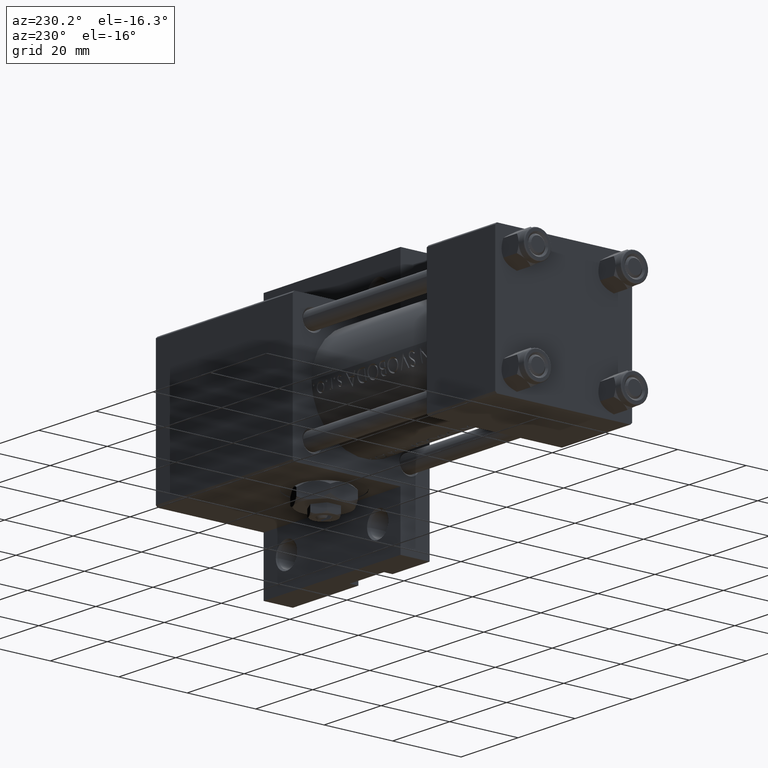
[diagram: clean part render]
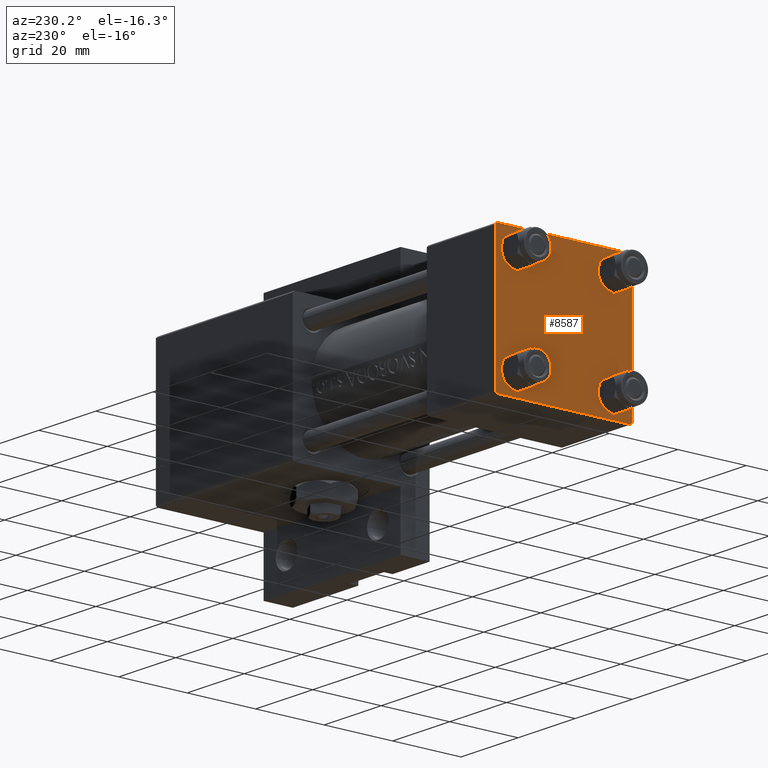
[diagram: same view with one face highlighted and labeled with its STEP entity id]
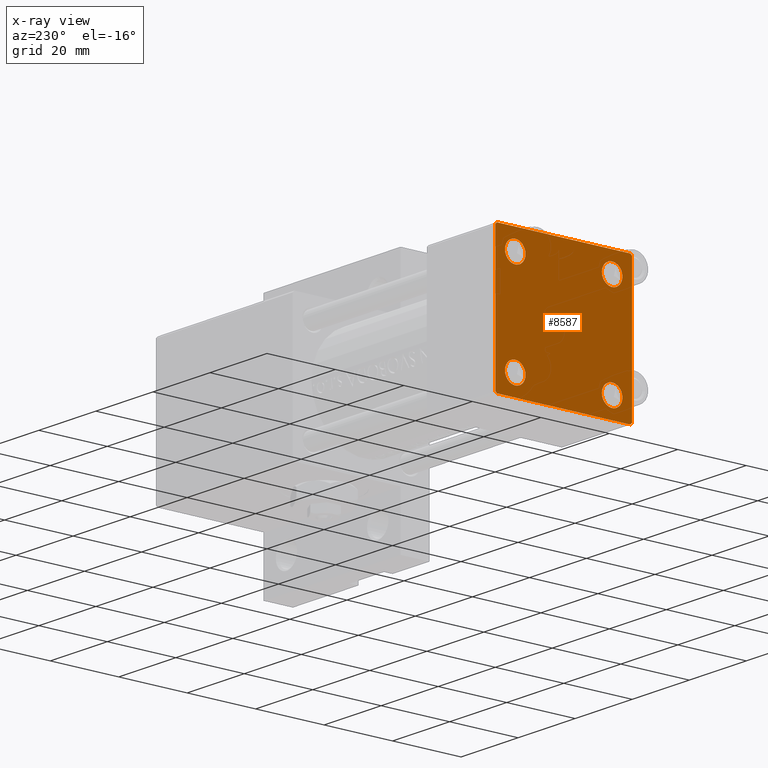
[diagram: x-ray of the same camera — body ghosted, the highlighted face saturated]
A machine part, auxiliary view. The second image highlights one B-rep face of the part: STEP entity #8587.
The next image is the same camera in x-ray: the body ghosted, the highlighted face saturated — about 0% of this face is hidden behind the body in this view.
In plain terms, the highlighted planar face has unit normal (-1, 0, -0).
Its self-contained STEP definition (entity closure, byte-faithful):
#93 = DIRECTION ( 'NONE',  ( 0.000000000000000000, 0.000000000000000000, 1.000000000000000000 ) ) ;
#180 = FACE_BOUND ( 'NONE', #40793, .T. ) ;
#1146 = CARTESIAN_POINT ( 'NONE',  ( 0.000000000000000000, 0.000000000000000000, 0.000000000000000000 ) ) ;
#1158 = CARTESIAN_POINT ( 'NONE',  ( 0.000000000000000000, 20.00000000000000000, -19.50000000000002132 ) ) ;
#1463 = VERTEX_POINT ( 'NONE', #16622 ) ;
#1566 = LINE ( 'NONE', #39234, #17185 ) ;
#1644 = CIRCLE ( 'NONE', #5632, 2.999999999999983569 ) ;
#1728 = EDGE_LOOP ( 'NONE', ( #29189, #20226 ) ) ;
#1836 = CARTESIAN_POINT ( 'NONE',  ( 0.000000000000000000, -19.49999999999999289, 19.99999999999998934 ) ) ;
#2260 = EDGE_CURVE ( 'NONE', #19618, #48536, #47639, .T. ) ;
#2349 = CARTESIAN_POINT ( 'NONE',  ( 0.000000000000000000, 20.00000000000000000, -20.00000000000000711 ) ) ;
#2526 = CIRCLE ( 'NONE', #21641, 3.000000000000004441 ) ;
#2536 = AXIS2_PLACEMENT_3D ( 'NONE', #42244, #31498, #93 ) ;
#2572 = CIRCLE ( 'NONE', #2536, 2.999999999999983569 ) ;
#2619 = CARTESIAN_POINT ( 'NONE',  ( 0.000000000000000000, -19.50000000000000711, -20.00000000000000000 ) ) ;
#2851 = DIRECTION ( 'NONE',  ( 0.000000000000000000, -1.000000000000000000, 1.734723475976807094E-16 ) ) ;
#2928 = EDGE_CURVE ( 'NONE', #13651, #46464, #33337, .T. ) ;
#3226 = EDGE_LOOP ( 'NONE', ( #48914, #45903, #28701, #46310, #16473, #34949, #37921, #20178 ) ) ;
#3936 = DIRECTION ( 'NONE',  ( 0.000000000000000000, 8.673617379884036705E-17, -1.000000000000000000 ) ) ;
#4941 = AXIS2_PLACEMENT_3D ( 'NONE', #47527, #8630, #43041 ) ;
#5066 = DIRECTION ( 'NONE',  ( 0.000000000000000000, 0.000000000000000000, -1.000000000000000000 ) ) ;
#5151 = CARTESIAN_POINT ( 'NONE',  ( 0.000000000000000000, 14.14999999999999858, 14.15000000000000036 ) ) ;
#5536 = CARTESIAN_POINT ( 'NONE',  ( 0.000000000000000000, -14.14999999999999503, -17.15000000000000924 ) ) ;
#5632 = AXIS2_PLACEMENT_3D ( 'NONE', #5151, #39077, #9142 ) ;
#5633 = DIRECTION ( 'NONE',  ( -0.000000000000000000, 0.000000000000000000, 1.000000000000000000 ) ) ;
#5774 = AXIS2_PLACEMENT_3D ( 'NONE', #38056, #25865, #19092 ) ;
#6269 = CARTESIAN_POINT ( 'NONE',  ( 0.000000000000000000, -14.14999999999999503, 17.14999999999998792 ) ) ;
#6294 = DIRECTION ( 'NONE',  ( 1.000000000000000000, 0.000000000000000000, 0.000000000000000000 ) ) ;
#8405 = VERTEX_POINT ( 'NONE', #16648 ) ;
#8461 = CIRCLE ( 'NONE', #36333, 2.999999999999983569 ) ;
#8587 = ADVANCED_FACE ( 'NONE', ( #49336, #34357, #180, #35565, #16591 ), #24838, .T. ) ;
#8630 = DIRECTION ( 'NONE',  ( 1.000000000000000000, 0.000000000000000000, 0.000000000000000000 ) ) ;
#9142 = DIRECTION ( 'NONE',  ( 0.000000000000000000, 0.000000000000000000, 1.000000000000000000 ) ) ;
#11417 = DIRECTION ( 'NONE',  ( -0.000000000000000000, -0.7071067811865524577, -0.7071067811865426878 ) ) ;
#11891 = CARTESIAN_POINT ( 'NONE',  ( 0.000000000000000000, -20.00000000000000355, 19.99999999999998934 ) ) ;
#12539 = CARTESIAN_POINT ( 'NONE',  ( 0.000000000000000000, 14.14999999999999858, 11.15000000000001990 ) ) ;
#12912 = AXIS2_PLACEMENT_3D ( 'NONE', #32894, #13917, #17905 ) ;
#13193 = EDGE_CURVE ( 'NONE', #48148, #22567, #1644, .T. ) ;
#13651 = VERTEX_POINT ( 'NONE', #22292 ) ;
#13917 = DIRECTION ( 'NONE',  ( 1.000000000000000000, 0.000000000000000000, 0.000000000000000000 ) ) ;
#14457 = VECTOR ( 'NONE', #38124, 1000.000000000000000 ) ;
#14961 = EDGE_CURVE ( 'NONE', #13651, #31926, #27621, .T. ) ;
#15421 = EDGE_CURVE ( 'NONE', #41970, #37706, #21553, .T. ) ;
#15558 = VERTEX_POINT ( 'NONE', #27512 ) ;
#15637 = CARTESIAN_POINT ( 'NONE',  ( -0.000000000000000000, 19.74999999999986855, -19.75000000000014211 ) ) ;
#15889 = CARTESIAN_POINT ( 'NONE',  ( 0.000000000000000000, 20.00000000000000000, 20.00000000000000000 ) ) ;
#16473 = ORIENTED_EDGE ( 'NONE', *, *, #31486, .F. ) ;
#16591 = FACE_OUTER_BOUND ( 'NONE', #3226, .T. ) ;
#16622 = CARTESIAN_POINT ( 'NONE',  ( 0.000000000000000000, -14.14999999999999503, -11.15000000000000036 ) ) ;
#16648 = CARTESIAN_POINT ( 'NONE',  ( 0.000000000000000000, -20.00000000000000000, -19.49999999999999645 ) ) ;
#16788 = ORIENTED_EDGE ( 'NONE', *, *, #20070, .T. ) ;
#17037 = DIRECTION ( 'NONE',  ( 0.000000000000000000, -0.7071067811865401342, 0.7071067811865549002 ) ) ;
#17185 = VECTOR ( 'NONE', #5066, 1000.000000000000000 ) ;
#17905 = DIRECTION ( 'NONE',  ( 0.000000000000000000, 0.000000000000000000, 1.000000000000000000 ) ) ;
#18271 = CARTESIAN_POINT ( 'NONE',  ( 0.000000000000000000, -20.00000000000000355, 19.49999999999998224 ) ) ;
#19092 = DIRECTION ( 'NONE',  ( 0.000000000000000000, 0.000000000000000000, 1.000000000000000000 ) ) ;
#19618 = VERTEX_POINT ( 'NONE', #6269 ) ;
#19649 = ORIENTED_EDGE ( 'NONE', *, *, #28002, .T. ) ;
#20070 = EDGE_CURVE ( 'NONE', #15558, #43306, #44024, .T. ) ;
#20178 = ORIENTED_EDGE ( 'NONE', *, *, #2928, .T. ) ;
#20226 = ORIENTED_EDGE ( 'NONE', *, *, #13193, .T. ) ;
#20358 = EDGE_CURVE ( 'NONE', #1463, #38628, #28849, .T. ) ;
#21005 = DIRECTION ( 'NONE',  ( 0.000000000000000000, 0.000000000000000000, 1.000000000000000000 ) ) ;
#21323 = ORIENTED_EDGE ( 'NONE', *, *, #40425, .T. ) ;
#21553 = LINE ( 'NONE', #2349, #39138 ) ;
#21641 = AXIS2_PLACEMENT_3D ( 'NONE', #25511, #6294, #21005 ) ;
#21826 = VECTOR ( 'NONE', #29664, 1000.000000000000114 ) ;
#22292 = CARTESIAN_POINT ( 'NONE',  ( 0.000000000000000000, 19.50000000000000000, 20.00000000000000000 ) ) ;
#22567 = VERTEX_POINT ( 'NONE', #25358 ) ;
#22678 = CARTESIAN_POINT ( 'NONE',  ( -0.000000000000000000, -19.74999999999992539, 19.75000000000006395 ) ) ;
#22937 = VECTOR ( 'NONE', #48554, 999.9999999999998863 ) ;
#23224 = CARTESIAN_POINT ( 'NONE',  ( 0.000000000000000000, 14.14999999999999858, 14.15000000000000036 ) ) ;
#24838 = PLANE ( 'NONE',  #38937 ) ;
#24975 = CARTESIAN_POINT ( 'NONE',  ( 0.000000000000000000, 14.14999999999999858, -17.14999999999998437 ) ) ;
#25050 = CARTESIAN_POINT ( 'NONE',  ( 0.000000000000000000, -19.75000000000020961, -19.74999999999979394 ) ) ;
#25293 = CARTESIAN_POINT ( 'NONE',  ( 0.000000000000000000, -14.14999999999999503, 14.15000000000000391 ) ) ;
#25358 = CARTESIAN_POINT ( 'NONE',  ( 0.000000000000000000, 14.14999999999999858, 17.14999999999998437 ) ) ;
#25511 = CARTESIAN_POINT ( 'NONE',  ( 0.000000000000000000, -14.14999999999999503, -14.15000000000000391 ) ) ;
#25865 = DIRECTION ( 'NONE',  ( 1.000000000000000000, 0.000000000000000000, 0.000000000000000000 ) ) ;
#27127 = EDGE_CURVE ( 'NONE', #22567, #48148, #8461, .T. ) ;
#27512 = CARTESIAN_POINT ( 'NONE',  ( 0.000000000000000000, 14.14999999999999858, -11.15000000000001812 ) ) ;
#27621 = LINE ( 'NONE', #15889, #14457 ) ;
#27686 = AXIS2_PLACEMENT_3D ( 'NONE', #25293, #37001, #44246 ) ;
#27760 = ORIENTED_EDGE ( 'NONE', *, *, #2260, .T. ) ;
#28002 = EDGE_CURVE ( 'NONE', #43306, #15558, #2572, .T. ) ;
#28130 = VECTOR ( 'NONE', #11417, 1000.000000000000000 ) ;
#28701 = ORIENTED_EDGE ( 'NONE', *, *, #15421, .T. ) ;
#28849 = CIRCLE ( 'NONE', #5774, 3.000000000000004441 ) ;
#29189 = ORIENTED_EDGE ( 'NONE', *, *, #27127, .T. ) ;
#29664 = DIRECTION ( 'NONE',  ( -0.000000000000000000, 0.7071067811865500152, 0.7071067811865451302 ) ) ;
#31486 = EDGE_CURVE ( 'NONE', #32035, #8405, #35328, .T. ) ;
#31498 = DIRECTION ( 'NONE',  ( 1.000000000000000000, 0.000000000000000000, 0.000000000000000000 ) ) ;
#31926 = VERTEX_POINT ( 'NONE', #1836 ) ;
#32035 = VERTEX_POINT ( 'NONE', #18271 ) ;
#32894 = CARTESIAN_POINT ( 'NONE',  ( 0.000000000000000000, 14.14999999999999858, -14.15000000000000036 ) ) ;
#33337 = LINE ( 'NONE', #37565, #22937 ) ;
#33354 = EDGE_CURVE ( 'NONE', #37706, #8405, #44252, .T. ) ;
#34357 = FACE_BOUND ( 'NONE', #46629, .T. ) ;
#34448 = DIRECTION ( 'NONE',  ( 0.000000000000000000, 0.000000000000000000, 1.000000000000000000 ) ) ;
#34949 = ORIENTED_EDGE ( 'NONE', *, *, #45455, .T. ) ;
#35328 = LINE ( 'NONE', #11891, #48085 ) ;
#35565 = FACE_BOUND ( 'NONE', #1728, .T. ) ;
#35729 = EDGE_CURVE ( 'NONE', #46464, #43674, #1566, .T. ) ;
#36333 = AXIS2_PLACEMENT_3D ( 'NONE', #23224, #41213, #34448 ) ;
#37001 = DIRECTION ( 'NONE',  ( 1.000000000000000000, 0.000000000000000000, 0.000000000000000000 ) ) ;
#37388 = LINE ( 'NONE', #22678, #21826 ) ;
#37565 = CARTESIAN_POINT ( 'NONE',  ( -0.000000000000000000, 19.75000000000013500, 19.74999999999986144 ) ) ;
#37581 = VECTOR ( 'NONE', #17037, 1000.000000000000000 ) ;
#37706 = VERTEX_POINT ( 'NONE', #2619 ) ;
#37861 = LINE ( 'NONE', #15637, #28130 ) ;
#37921 = ORIENTED_EDGE ( 'NONE', *, *, #14961, .F. ) ;
#38056 = CARTESIAN_POINT ( 'NONE',  ( 0.000000000000000000, -14.14999999999999503, -14.15000000000000391 ) ) ;
#38124 = DIRECTION ( 'NONE',  ( 0.000000000000000000, -1.000000000000000000, -2.602085213965210149E-16 ) ) ;
#38628 = VERTEX_POINT ( 'NONE', #5536 ) ;
#38937 = AXIS2_PLACEMENT_3D ( 'NONE', #1146, #47046, #5633 ) ;
#39077 = DIRECTION ( 'NONE',  ( 1.000000000000000000, 0.000000000000000000, 0.000000000000000000 ) ) ;
#39138 = VECTOR ( 'NONE', #2851, 1000.000000000000000 ) ;
#39234 = CARTESIAN_POINT ( 'NONE',  ( 0.000000000000000000, 20.00000000000000000, 20.00000000000000000 ) ) ;
#39751 = ORIENTED_EDGE ( 'NONE', *, *, #20358, .T. ) ;
#39869 = EDGE_LOOP ( 'NONE', ( #27760, #49087 ) ) ;
#40425 = EDGE_CURVE ( 'NONE', #38628, #1463, #2526, .T. ) ;
#40582 = CARTESIAN_POINT ( 'NONE',  ( 0.000000000000000000, 20.00000000000000000, 19.49999999999999289 ) ) ;
#40793 = EDGE_LOOP ( 'NONE', ( #16788, #19649 ) ) ;
#41213 = DIRECTION ( 'NONE',  ( 1.000000000000000000, 0.000000000000000000, 0.000000000000000000 ) ) ;
#41387 = EDGE_CURVE ( 'NONE', #48536, #19618, #46395, .T. ) ;
#41970 = VERTEX_POINT ( 'NONE', #46000 ) ;
#42244 = CARTESIAN_POINT ( 'NONE',  ( 0.000000000000000000, 14.14999999999999858, -14.15000000000000036 ) ) ;
#42990 = EDGE_CURVE ( 'NONE', #43674, #41970, #37861, .T. ) ;
#43041 = DIRECTION ( 'NONE',  ( 0.000000000000000000, 0.000000000000000000, 1.000000000000000000 ) ) ;
#43306 = VERTEX_POINT ( 'NONE', #24975 ) ;
#43674 = VERTEX_POINT ( 'NONE', #1158 ) ;
#44024 = CIRCLE ( 'NONE', #12912, 2.999999999999983569 ) ;
#44246 = DIRECTION ( 'NONE',  ( 0.000000000000000000, 0.000000000000000000, 1.000000000000000000 ) ) ;
#44252 = LINE ( 'NONE', #25050, #37581 ) ;
#45455 = EDGE_CURVE ( 'NONE', #32035, #31926, #37388, .T. ) ;
#45813 = CARTESIAN_POINT ( 'NONE',  ( 0.000000000000000000, -14.14999999999999503, 11.15000000000002345 ) ) ;
#45903 = ORIENTED_EDGE ( 'NONE', *, *, #42990, .T. ) ;
#46000 = CARTESIAN_POINT ( 'NONE',  ( 0.000000000000000000, 19.50000000000000711, -20.00000000000000711 ) ) ;
#46310 = ORIENTED_EDGE ( 'NONE', *, *, #33354, .T. ) ;
#46395 = CIRCLE ( 'NONE', #4941, 2.999999999999983569 ) ;
#46464 = VERTEX_POINT ( 'NONE', #40582 ) ;
#46629 = EDGE_LOOP ( 'NONE', ( #39751, #21323 ) ) ;
#47046 = DIRECTION ( 'NONE',  ( -1.000000000000000000, 0.000000000000000000, -0.000000000000000000 ) ) ;
#47527 = CARTESIAN_POINT ( 'NONE',  ( 0.000000000000000000, -14.14999999999999503, 14.15000000000000391 ) ) ;
#47639 = CIRCLE ( 'NONE', #27686, 2.999999999999983569 ) ;
#48085 = VECTOR ( 'NONE', #3936, 1000.000000000000000 ) ;
#48148 = VERTEX_POINT ( 'NONE', #12539 ) ;
#48536 = VERTEX_POINT ( 'NONE', #45813 ) ;
#48554 = DIRECTION ( 'NONE',  ( 0.000000000000000000, 0.7071067811865425767, -0.7071067811865525687 ) ) ;
#48914 = ORIENTED_EDGE ( 'NONE', *, *, #35729, .T. ) ;
#49087 = ORIENTED_EDGE ( 'NONE', *, *, #41387, .T. ) ;
#49336 = FACE_BOUND ( 'NONE', #39869, .T. ) ;